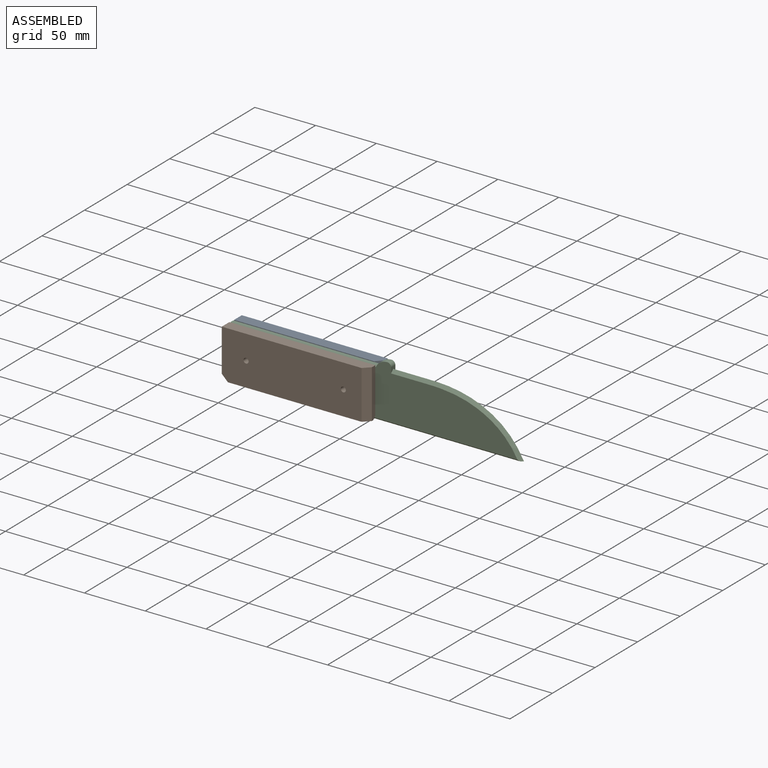
[diagram: assembled view]
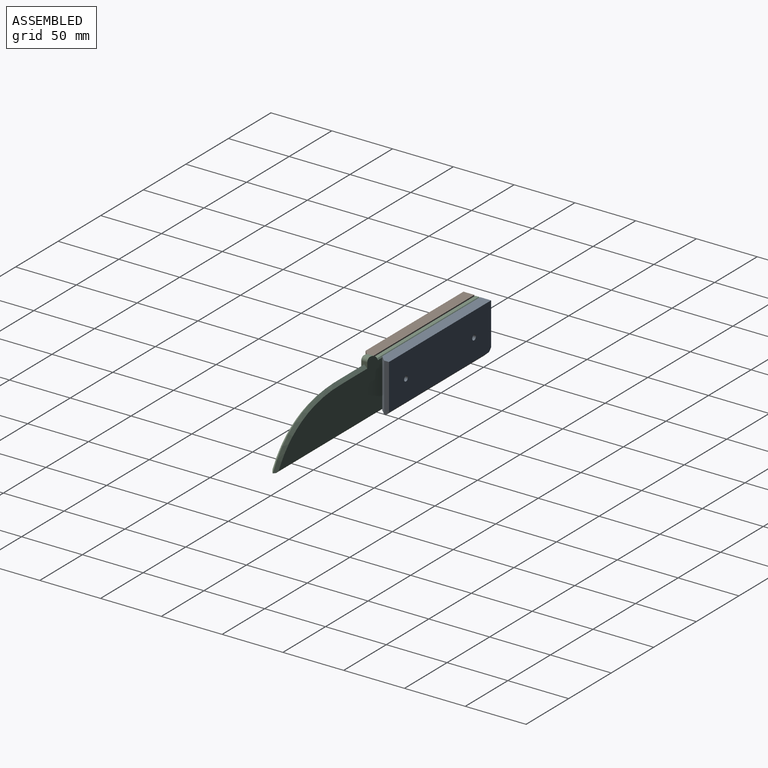
[diagram: assembled view, second angle]
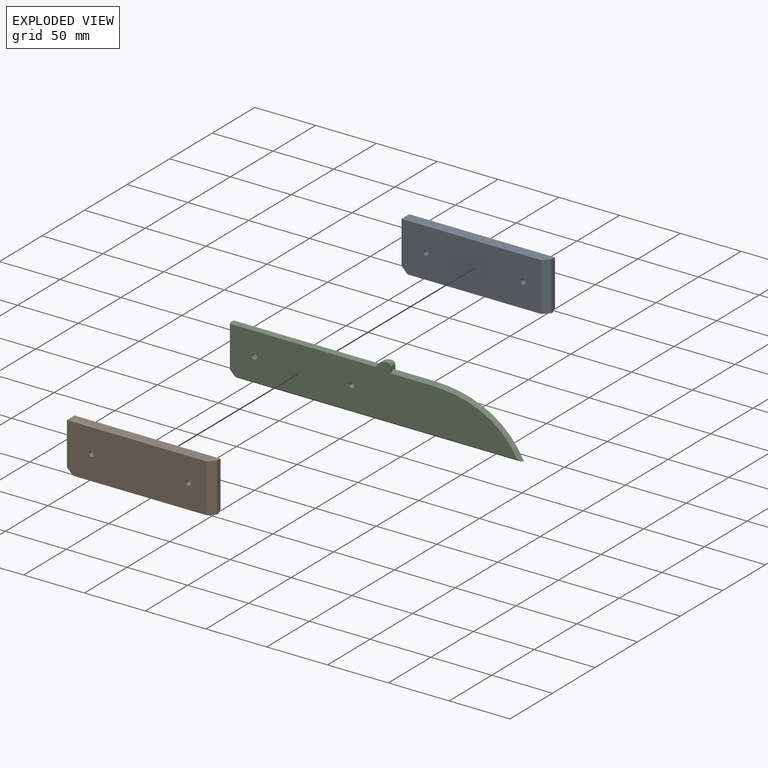
[diagram: exploded view]
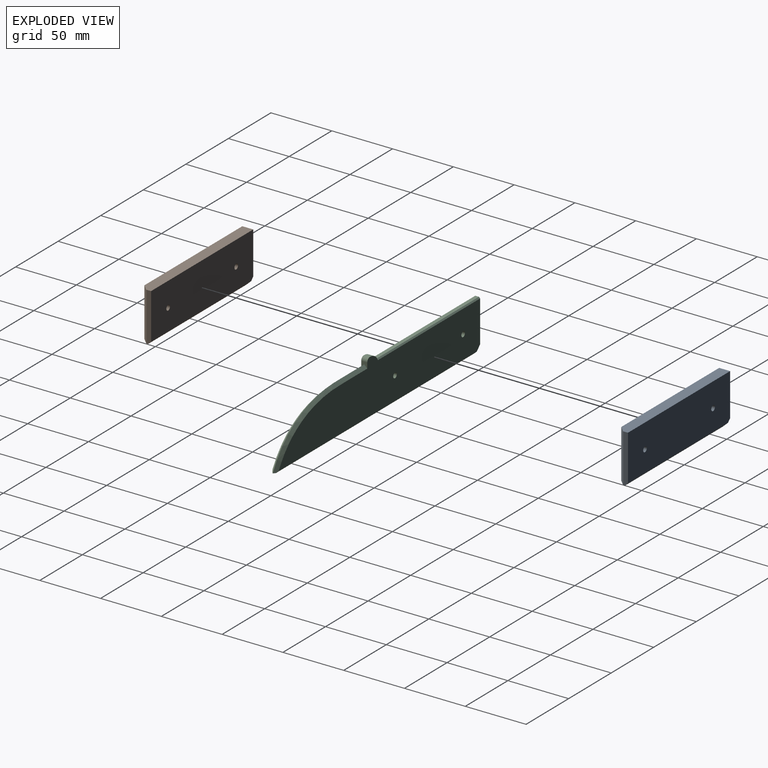
[diagram: exploded view, second angle]
ASSEMBLY  parts=3 mates=2
PART A: 11 faces, bbox 120x9x40 mm
  f0: plane 40x4mm, normal (1,0,0), area 156.9mm2, adj f1,f4,f7,f9,f10
  f1: plane 120x9mm, normal (0,0,1), area 1067.5mm2, adj f0,f2,f6,f7,f9
  f2: plane 35x9mm, normal (-1,0,0), area 315mm2, adj f1,f6,f7,f8
  f3: cylinder r=2.1mm len=9mm, axis (0,1,0), area 118.8mm2, adj f6,f7
  f4: plane 115x6.5mm, normal (0,0,-1), area 735mm2, adj f0,f6,f8,f9,f10
  f5: cylinder r=2.1mm len=9mm, axis (0,1,0), area 118.8mm2, adj f6,f7
  f6: plane 115x40mm, normal (0,-1,0), area 4559.8mm2, adj f1,f2,f3,f4,f5,f8,f9
  f7: plane 120x37.5mm, normal (0,1,0), area 4469.2mm2, adj f0,f1,f2,f3,f5,f8,f10
  f8: plane 9x5mm, normal (-0.71,0,-0.71), area 59.2mm2, adj f2,f4,f6,f7,f10
  f9: plane 40x5mm, normal (0.71,-0.71,0), area 282.8mm2, adj f0,f1,f4,f6
  f10: plane 117.5x2.5mm, normal (0,0.71,-0.71), area 411mm2, adj f0,f4,f7,f8
PART B: same geometry as A
PART C: 20 faces, bbox 242.7x5.5x50.8 mm
  f0: plane 5x4.5mm, normal (1,0,0), area 16.2mm2, adj f7,f8,f10,f17,f19
  f1: plane 5x0.34mm, normal (0,0,1), area 1.7mm2, adj f7,f8,f9,f10
  f2: plane 120.6x3mm, normal (0,0,1), area 361.8mm2, adj f3,f9,f11,f12
  f3: plane 35x5mm, normal (-1,0,0), area 174mm2, adj f2,f7,f8,f11,f12,f13
  f4: plane 235.14x3.01mm, normal (0,0,-1), area 702.9mm2, adj f13,f14,f15,f16,f18
  f5: cylinder r=2.1mm len=5mm, axis (0,1,0), area 66mm2, adj f7,f8
  f6: cylinder r=2.1mm len=5mm, axis (0,1,0), area 66mm2, adj f7,f8
  f7: plane 237.29x44.53mm, normal (0,-1,0), area 8166.4mm2, adj f0,f1,f3,f5,f6,f9,f10,f11
  f8: plane 237.29x44.53mm, normal (0,1,0), area 8166.4mm2, adj f0,f1,f3,f5,f6,f9,f10,f12
  f9: cylinder r=10mm len=9.17mm, axis (0,1,0), area 53.5mm2, adj f1,f2,f7,f8,f11,f12
  f10: cylinder r=3mm len=5mm, axis (0,-1,0), area 23.6mm2, adj f0,f1,f7,f8
  f11: plane 120.62x1.01mm, normal (0,-0.71,0.71), area 170.2mm2, adj f2,f3,f7,f9
  f12: plane 120.62x1.01mm, normal (0,0.71,0.71), area 170.2mm2, adj f2,f3,f8,f9
  f13: plane 5x5mm, normal (-0.71,0,-0.71), area 33.9mm2, adj f3,f4,f7,f8,f14,f15
  f14: plane 234.45x1.01mm, normal (0,0.71,-0.71), area 329.6mm2, adj f4,f8,f13,f16
  f15: plane 234.45x1.01mm, normal (0,-0.71,-0.71), area 329.7mm2, adj f4,f7,f13,f18
  f16: bspline ~82.18x45.32mm, area 327.4mm2, adj f4,f8,f14,f17,f18
  f17: plane 27.4x2.5mm, normal (0,0.71,0.71), area 96.9mm2, adj f0,f8,f16,f19
  f18: bspline ~82.18x45.32mm, area 327.4mm2, adj f4,f7,f15,f16,f19
  f19: plane 27.4x2.5mm, normal (0,-0.71,0.71), area 96.9mm2, adj f0,f7,f17,f18
PLACE A t=(-345.82,-3.19,18.25)mm
PLACE B t=(-346.2,-17.19,18.43)mm
PLACE C t=(-6.34,-12.19,9.64)mm
MATE planar C.f6 <-> B.f5  axis (0,-1,0) through (-393.37,-17.19,9.64)mm
MATE slider A.f3 <-> C.f5  axis (0,-1,0) through (-313.37,-12.19,9.64)mm
